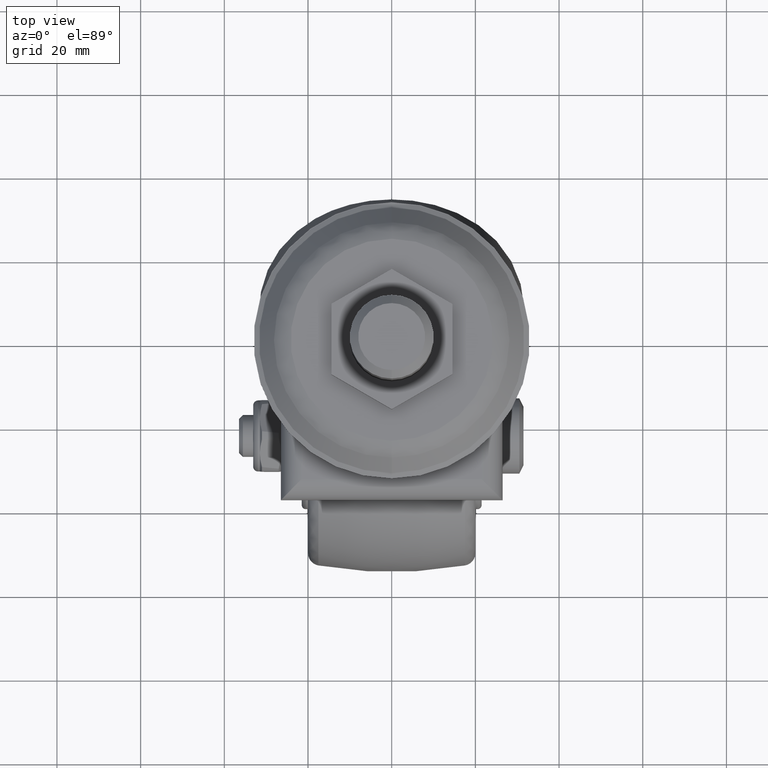
[diagram: clean part render]
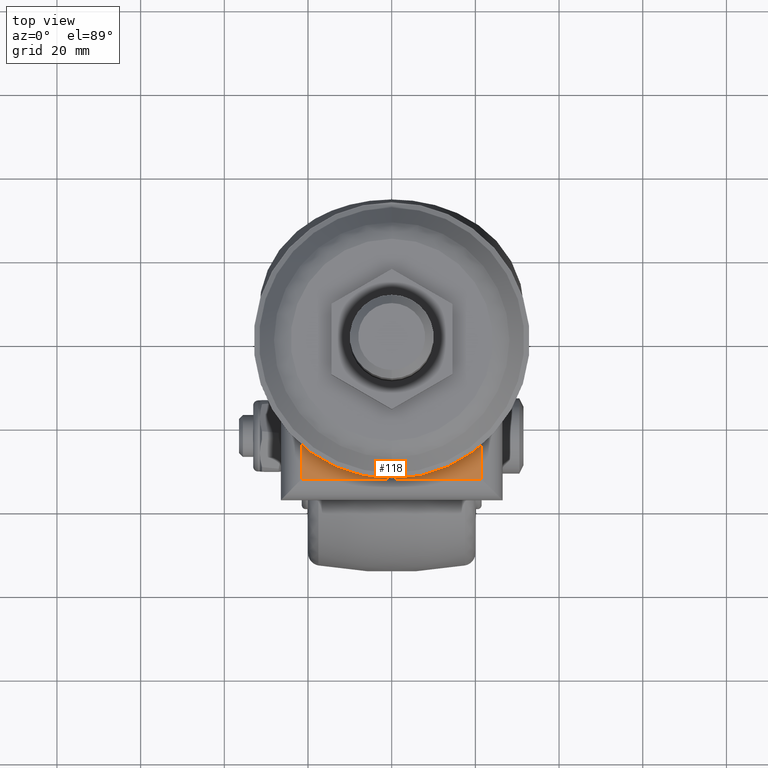
[diagram: same view with one face highlighted and labeled with its STEP entity id]
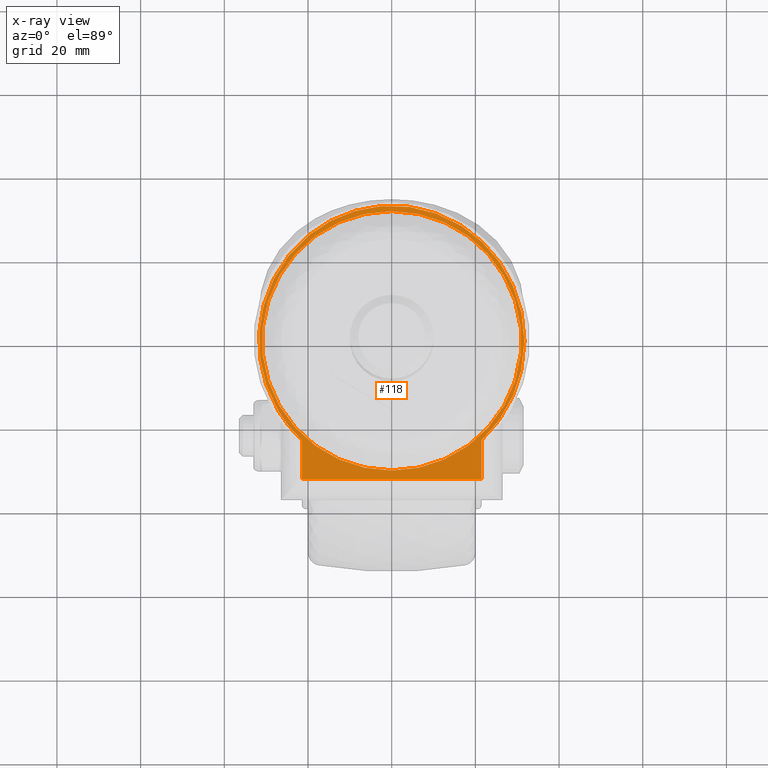
[diagram: x-ray of the same camera — body ghosted, the highlighted face saturated]
A machine part, top view. The second image highlights one B-rep face of the part: STEP entity #118.
The next image is the same camera in x-ray: the body ghosted, the highlighted face saturated — about 0% of this face is hidden behind the body in this view.
In plain terms, the highlighted planar face has unit normal (0, 0, -1).
Its self-contained STEP definition (entity closure, byte-faithful):
#118=ADVANCED_FACE('',(#383,#384),#382,.F.);
#382=PLANE('',#2488);
#383=FACE_OUTER_BOUND('',#2489,.T.);
#384=FACE_BOUND('',#2490,.T.);
#2485=CARTESIAN_POINT('',(-4.49010209731E+01,-1.60000000000E+01,3.95304584925E+01));
#2486=DIRECTION('',(0.00000000000E+00,-1.00000000000E+00,0.00000000000E+00));
#2487=DIRECTION('',(0.00000000000E+00,0.00000000000E+00,-1.00000000000E+00));
#2488=AXIS2_PLACEMENT_3D('',#2485,#2486,#2487);
#2489=EDGE_LOOP('',(#4283,#4284,#4285,#4286));
#2490=EDGE_LOOP('',(#4287,#4288));
#4283=ORIENTED_EDGE('',*,*,#5356,.F.);
#4284=ORIENTED_EDGE('',*,*,#5357,.T.);
#4285=ORIENTED_EDGE('',*,*,#5358,.T.);
#4286=ORIENTED_EDGE('',*,*,#5354,.F.);
#4287=ORIENTED_EDGE('',*,*,#5359,.T.);
#4288=ORIENTED_EDGE('',*,*,#5360,.T.);
#5354=EDGE_CURVE('',#6076,#6083,#6084,.T.);
#5356=EDGE_CURVE('',#6096,#6076,#6097,.T.);
#5357=EDGE_CURVE('',#6096,#6103,#6104,.T.);
#5358=EDGE_CURVE('',#6103,#6083,#6110,.T.);
#5359=EDGE_CURVE('',#6116,#6117,#6118,.T.);
#5360=EDGE_CURVE('',#6117,#6116,#6124,.T.);
#6076=VERTEX_POINT('',#9746);
#6083=VERTEX_POINT('',#9750);
#6084=LINE('',#9751,#9752);
#6096=VERTEX_POINT('',#9774);
#6097=LINE('',#9775,#9776);
#6103=VERTEX_POINT('',#9778);
#6104=LINE('',#9779,#9780);
#6110=(BOUNDED_CURVE() B_SPLINE_CURVE(2,(#9782,#9783,#9784,#9785,#9786,#9787,#9788,#9789,#9790),.UNSPECIFIED.,.F.,.F.) B_SPLINE_CURVE_WITH_KNOTS((3,2,2,2,3),(3.88662851456E+00,5.09068243800E+00,6.28318530718E+00,7.47568817636E+00,8.67974209980E+00),.UNSPECIFIED.) CURVE() GEOMETRIC_REPRESENTATION_ITEM() RATIONAL_B_SPLINE_CURVE((1.00000000000E+00,8.25821354353E-01,1.00000000000E+00,8.25821354353E-01,1.00000000000E+00,8.25821354353E-01,1.00000000000E+00,8.25821354353E-01,1.00000000000E+00)) REPRESENTATION_ITEM('') );
#6116=VERTEX_POINT('',#9791);
#6117=VERTEX_POINT('',#9792);
#6118=CIRCLE('',#9796,3.10000000000E+01);
#6124=CIRCLE('',#9800,3.10000000000E+01);
#9746=CARTESIAN_POINT('',(-2.15000000000E+01,-1.60000000000E+01,3.30000000000E+01));
#9750=CARTESIAN_POINT('',(-2.15000000000E+01,-1.60000000000E+01,2.37458203658E+01));
#9751=CARTESIAN_POINT('',(-2.15000000000E+01,-1.60000000000E+01,3.30000000000E+01));
#9752=VECTOR('',#9753,9.25417963419E+00);
#9753=DIRECTION('',(0.00000000000E+00,0.00000000000E+00,-1.00000000000E+00));
#9774=CARTESIAN_POINT('',(2.15000000000E+01,-1.60000000000E+01,3.30000000000E+01));
#9775=CARTESIAN_POINT('',(2.15000000000E+01,-1.60000000000E+01,3.30000000000E+01));
#9776=VECTOR('',#9777,4.30000000000E+01);
#9777=DIRECTION('',(-1.00000000000E+00,0.00000000000E+00,0.00000000000E+00));
#9778=CARTESIAN_POINT('',(2.15000000000E+01,-1.60000000000E+01,2.37458203658E+01));
#9779=CARTESIAN_POINT('',(2.15000000000E+01,-1.60000000000E+01,3.30000000000E+01));
#9780=VECTOR('',#9781,9.25417963419E+00);
#9781=DIRECTION('',(0.00000000000E+00,0.00000000000E+00,-1.00000000000E+00));
#9782=CARTESIAN_POINT('',(2.15000000000E+01,-1.60000000000E+01,2.37458203658E+01));
#9783=CARTESIAN_POINT('',(3.74175174776E+01,-1.60000000000E+01,8.78923788293E+00));
#9784=CARTESIAN_POINT('',(2.95360651867E+01,-1.60000000000E+01,-1.17576735210E+01));
#9785=CARTESIAN_POINT('',(2.16546128958E+01,-1.60000000000E+01,-3.23045849249E+01));
#9786=CARTESIAN_POINT('',(7.76669841721E-15,-1.60000000000E+01,-3.23045849249E+01));
#9787=CARTESIAN_POINT('',(-2.16546128958E+01,-1.60000000000E+01,-3.23045849249E+01));
#9788=CARTESIAN_POINT('',(-2.95360651867E+01,-1.60000000000E+01,-1.17576735210E+01));
#9789=CARTESIAN_POINT('',(-3.74175174776E+01,-1.60000000000E+01,8.78923788293E+00));
#9790=CARTESIAN_POINT('',(-2.15000000000E+01,-1.60000000000E+01,2.37458203658E+01));
#9791=CARTESIAN_POINT('',(0.00000000000E+00,-1.60000000000E+01,-3.10000000000E+01));
#9792=CARTESIAN_POINT('',(3.55271367880E-15,-1.60000000000E+01,3.10000000000E+01));
#9793=CARTESIAN_POINT('',(0.00000000000E+00,-1.60000000000E+01,3.55271367880E-15));
#9794=DIRECTION('',(-5.47382212627E-48,-1.00000000000E+00,2.77555756156E-16));
#9795=DIRECTION('',(-1.22460635382E-16,-2.77555756156E-16,-1.00000000000E+00));
#9796=AXIS2_PLACEMENT_3D('',#9793,#9794,#9795);
#9797=CARTESIAN_POINT('',(0.00000000000E+00,-1.60000000000E+01,3.55271367880E-15));
#9798=DIRECTION('',(-5.47382212627E-48,-1.00000000000E+00,2.77555756156E-16));
#9799=DIRECTION('',(-1.22460635382E-16,-2.77555756156E-16,-1.00000000000E+00));
#9800=AXIS2_PLACEMENT_3D('',#9797,#9798,#9799);